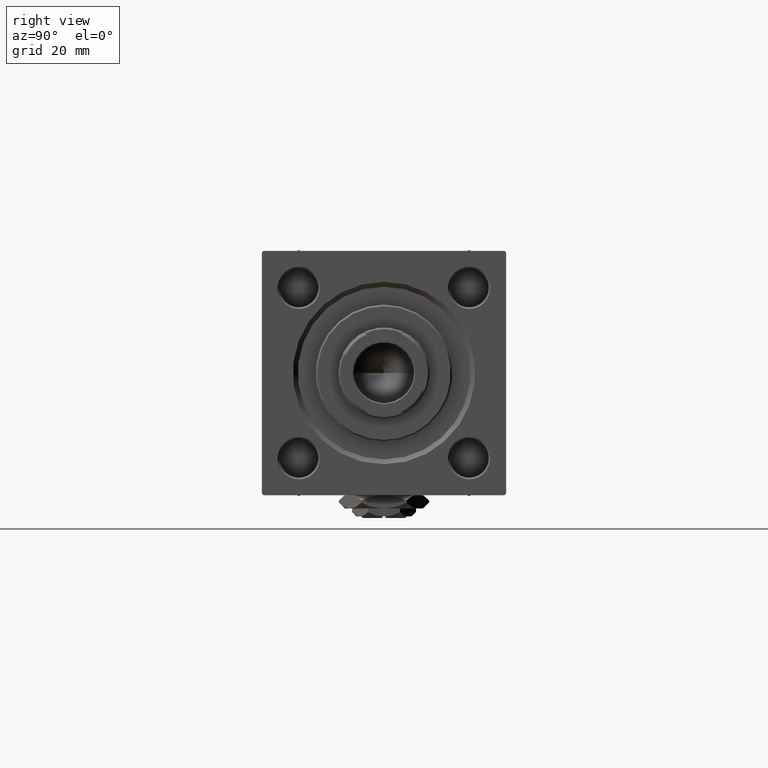
[diagram: clean part render]
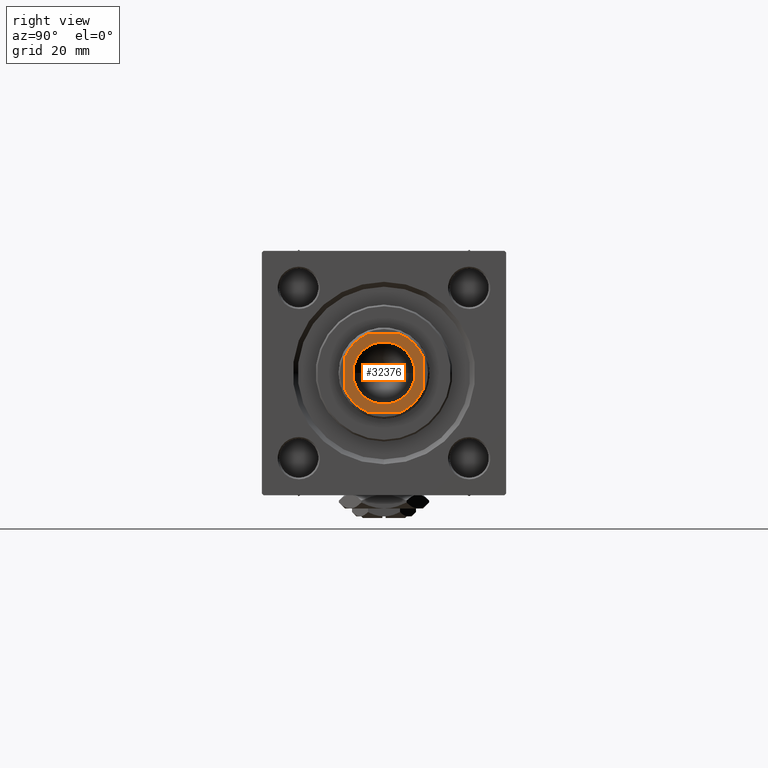
[diagram: same view with one face highlighted and labeled with its STEP entity id]
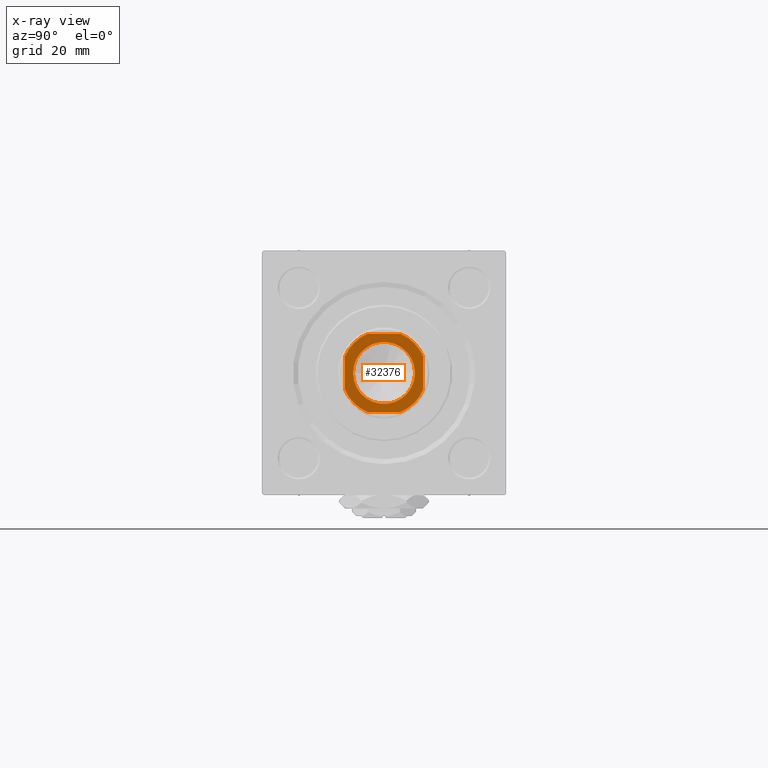
[diagram: x-ray of the same camera — body ghosted, the highlighted face saturated]
A machine part, right view. The second image highlights one B-rep face of the part: STEP entity #32376.
The next image is the same camera in x-ray: the body ghosted, the highlighted face saturated — about 0% of this face is hidden behind the body in this view.
In plain terms, the highlighted planar face has unit normal (1, 0, 0).
Its self-contained STEP definition (entity closure, byte-faithful):
#160 = DIRECTION ( 'NONE',  ( 1.000000000000000000, 0.000000000000000000, 0.000000000000000000 ) ) ;
#715 = CARTESIAN_POINT ( 'NONE',  ( -4.999999999999944933, 11.99999999999999645, 142.0000000000000284 ) ) ;
#791 = VERTEX_POINT ( 'NONE', #2981 ) ;
#1303 = EDGE_LOOP ( 'NONE', ( #21307, #13926 ) ) ;
#2161 = LINE ( 'NONE', #18248, #43267 ) ;
#2689 = AXIS2_PLACEMENT_3D ( 'NONE', #37935, #33956, #37671 ) ;
#2776 = DIRECTION ( 'NONE',  ( 1.000000000000000000, 0.000000000000000000, 0.000000000000000000 ) ) ;
#2860 = EDGE_CURVE ( 'NONE', #14286, #7792, #39798, .T. ) ;
#2873 = CARTESIAN_POINT ( 'NONE',  ( 0.000000000000000000, 0.000000000000000000, 142.0000000000000284 ) ) ;
#2981 = CARTESIAN_POINT ( 'NONE',  ( 4.999999999999984013, 11.99999999999999645, 142.0000000000000284 ) ) ;
#3241 = AXIS2_PLACEMENT_3D ( 'NONE', #47650, #19883, #31775 ) ;
#3315 = VECTOR ( 'NONE', #9875, 1000.000000000000000 ) ;
#3448 = CARTESIAN_POINT ( 'NONE',  ( 0.000000000000000000, 0.000000000000000000, 142.0000000000000284 ) ) ;
#5926 = CARTESIAN_POINT ( 'NONE',  ( -12.00000000000000000, 4.999999999999936051, 142.0000000000000284 ) ) ;
#7792 = VERTEX_POINT ( 'NONE', #23118 ) ;
#7898 = DIRECTION ( 'NONE',  ( 1.000000000000000000, 0.000000000000000000, 0.000000000000000000 ) ) ;
#7971 = AXIS2_PLACEMENT_3D ( 'NONE', #2873, #11578, #42768 ) ;
#9875 = DIRECTION ( 'NONE',  ( -1.000000000000000000, -0.000000000000000000, -0.000000000000000000 ) ) ;
#11140 = ORIENTED_EDGE ( 'NONE', *, *, #2860, .T. ) ;
#11486 = DIRECTION ( 'NONE',  ( -0.000000000000000000, 0.000000000000000000, 1.000000000000000000 ) ) ;
#11578 = DIRECTION ( 'NONE',  ( -0.000000000000000000, 0.000000000000000000, 1.000000000000000000 ) ) ;
#11696 = CIRCLE ( 'NONE', #15911, 9.550000000000002487 ) ;
#12608 = FACE_OUTER_BOUND ( 'NONE', #14592, .T. ) ;
#13926 = ORIENTED_EDGE ( 'NONE', *, *, #16848, .T. ) ;
#14286 = VERTEX_POINT ( 'NONE', #45200 ) ;
#14463 = AXIS2_PLACEMENT_3D ( 'NONE', #3448, #31965, #43616 ) ;
#14592 = EDGE_LOOP ( 'NONE', ( #14761, #17503, #31770, #42727, #17155, #11140, #31267, #46550 ) ) ;
#14761 = ORIENTED_EDGE ( 'NONE', *, *, #48842, .T. ) ;
#15222 = DIRECTION ( 'NONE',  ( 0.000000000000000000, -0.000000000000000000, -1.000000000000000000 ) ) ;
#15492 = CARTESIAN_POINT ( 'NONE',  ( 0.000000000000000000, 0.000000000000000000, 142.0000000000000284 ) ) ;
#15669 = CARTESIAN_POINT ( 'NONE',  ( 12.00000000000000178, -4.999999999999976907, 142.0000000000000284 ) ) ;
#15911 = AXIS2_PLACEMENT_3D ( 'NONE', #15492, #15222, #160 ) ;
#16848 = EDGE_CURVE ( 'NONE', #48701, #22309, #51603, .T. ) ;
#17155 = ORIENTED_EDGE ( 'NONE', *, *, #48262, .T. ) ;
#17503 = ORIENTED_EDGE ( 'NONE', *, *, #27007, .T. ) ;
#18248 = CARTESIAN_POINT ( 'NONE',  ( -12.00000000000000000, 11.99999999999999645, 142.0000000000000284 ) ) ;
#18583 = DIRECTION ( 'NONE',  ( -2.891205793294678326E-16, 1.000000000000000000, -0.000000000000000000 ) ) ;
#19827 = CIRCLE ( 'NONE', #49372, 12.99999999999999289 ) ;
#19883 = DIRECTION ( 'NONE',  ( -0.000000000000000000, 0.000000000000000000, 1.000000000000000000 ) ) ;
#20410 = VERTEX_POINT ( 'NONE', #26356 ) ;
#20532 = PLANE ( 'NONE',  #27530 ) ;
#20781 = DIRECTION ( 'NONE',  ( 1.000000000000000000, 0.000000000000000000, 0.000000000000000000 ) ) ;
#21307 = ORIENTED_EDGE ( 'NONE', *, *, #35146, .T. ) ;
#22135 = VECTOR ( 'NONE', #7898, 1000.000000000000000 ) ;
#22309 = VERTEX_POINT ( 'NONE', #50381 ) ;
#22800 = EDGE_CURVE ( 'NONE', #7792, #35355, #42271, .T. ) ;
#23118 = CARTESIAN_POINT ( 'NONE',  ( -4.999999999999971578, -12.00000000000000355, 142.0000000000000284 ) ) ;
#25173 = CIRCLE ( 'NONE', #3241, 12.99999999999997513 ) ;
#26356 = CARTESIAN_POINT ( 'NONE',  ( 11.99999999999999822, 4.999999999999980460, 142.0000000000000284 ) ) ;
#27007 = EDGE_CURVE ( 'NONE', #20410, #791, #34968, .T. ) ;
#27185 = CARTESIAN_POINT ( 'NONE',  ( -11.99999999999999822, -12.00000000000000355, 142.0000000000000284 ) ) ;
#27530 = AXIS2_PLACEMENT_3D ( 'NONE', #32437, #49332, #20781 ) ;
#29429 = CARTESIAN_POINT ( 'NONE',  ( -9.550000000000002487, 1.169537693185722558E-15, 142.0000000000000284 ) ) ;
#29475 = EDGE_CURVE ( 'NONE', #35355, #38902, #19827, .T. ) ;
#31267 = ORIENTED_EDGE ( 'NONE', *, *, #22800, .T. ) ;
#31770 = ORIENTED_EDGE ( 'NONE', *, *, #36824, .T. ) ;
#31775 = DIRECTION ( 'NONE',  ( 1.000000000000000000, 0.000000000000000000, 0.000000000000000000 ) ) ;
#31965 = DIRECTION ( 'NONE',  ( -0.000000000000000000, 0.000000000000000000, 1.000000000000000000 ) ) ;
#32369 = VERTEX_POINT ( 'NONE', #715 ) ;
#32376 = ADVANCED_FACE ( 'NONE', ( #33212, #12608 ), #20532, .T. ) ;
#32437 = CARTESIAN_POINT ( 'NONE',  ( 0.000000000000000000, 0.000000000000000000, 142.0000000000000284 ) ) ;
#33212 = FACE_BOUND ( 'NONE', #1303, .T. ) ;
#33956 = DIRECTION ( 'NONE',  ( 0.000000000000000000, -0.000000000000000000, -1.000000000000000000 ) ) ;
#33964 = VECTOR ( 'NONE', #18583, 1000.000000000000000 ) ;
#34366 = DIRECTION ( 'NONE',  ( 7.228014483236695816E-17, -1.000000000000000000, 0.000000000000000000 ) ) ;
#34968 = CIRCLE ( 'NONE', #7971, 12.99999999999999112 ) ;
#35146 = EDGE_CURVE ( 'NONE', #22309, #48701, #11696, .T. ) ;
#35355 = VERTEX_POINT ( 'NONE', #46623 ) ;
#36824 = EDGE_CURVE ( 'NONE', #791, #32369, #37367, .T. ) ;
#37367 = LINE ( 'NONE', #37882, #3315 ) ;
#37671 = DIRECTION ( 'NONE',  ( 1.000000000000000000, 0.000000000000000000, 0.000000000000000000 ) ) ;
#37882 = CARTESIAN_POINT ( 'NONE',  ( -12.00000000000000000, 11.99999999999999645, 142.0000000000000284 ) ) ;
#37935 = CARTESIAN_POINT ( 'NONE',  ( 0.000000000000000000, 0.000000000000000000, 142.0000000000000284 ) ) ;
#38771 = EDGE_CURVE ( 'NONE', #32369, #48871, #25173, .T. ) ;
#38902 = VERTEX_POINT ( 'NONE', #15669 ) ;
#39798 = CIRCLE ( 'NONE', #14463, 12.99999999999999289 ) ;
#42271 = LINE ( 'NONE', #27185, #22135 ) ;
#42727 = ORIENTED_EDGE ( 'NONE', *, *, #38771, .T. ) ;
#42768 = DIRECTION ( 'NONE',  ( 1.000000000000000000, 0.000000000000000000, 0.000000000000000000 ) ) ;
#43267 = VECTOR ( 'NONE', #34366, 1000.000000000000000 ) ;
#43616 = DIRECTION ( 'NONE',  ( 1.000000000000000000, 0.000000000000000000, 0.000000000000000000 ) ) ;
#45200 = CARTESIAN_POINT ( 'NONE',  ( -12.00000000000000000, -4.999999999999980460, 142.0000000000000284 ) ) ;
#46353 = LINE ( 'NONE', #46874, #33964 ) ;
#46550 = ORIENTED_EDGE ( 'NONE', *, *, #29475, .T. ) ;
#46623 = CARTESIAN_POINT ( 'NONE',  ( 4.999999999999971578, -12.00000000000000355, 142.0000000000000284 ) ) ;
#46874 = CARTESIAN_POINT ( 'NONE',  ( 11.99999999999999645, 11.99999999999999645, 142.0000000000000284 ) ) ;
#47650 = CARTESIAN_POINT ( 'NONE',  ( 0.000000000000000000, 0.000000000000000000, 142.0000000000000284 ) ) ;
#48262 = EDGE_CURVE ( 'NONE', #48871, #14286, #2161, .T. ) ;
#48701 = VERTEX_POINT ( 'NONE', #29429 ) ;
#48842 = EDGE_CURVE ( 'NONE', #38902, #20410, #46353, .T. ) ;
#48871 = VERTEX_POINT ( 'NONE', #5926 ) ;
#49332 = DIRECTION ( 'NONE',  ( -0.000000000000000000, 0.000000000000000000, 1.000000000000000000 ) ) ;
#49372 = AXIS2_PLACEMENT_3D ( 'NONE', #51641, #11486, #2776 ) ;
#50381 = CARTESIAN_POINT ( 'NONE',  ( 9.550000000000002487, 0.000000000000000000, 142.0000000000000284 ) ) ;
#51603 = CIRCLE ( 'NONE', #2689, 9.550000000000002487 ) ;
#51641 = CARTESIAN_POINT ( 'NONE',  ( 0.000000000000000000, 0.000000000000000000, 142.0000000000000284 ) ) ;